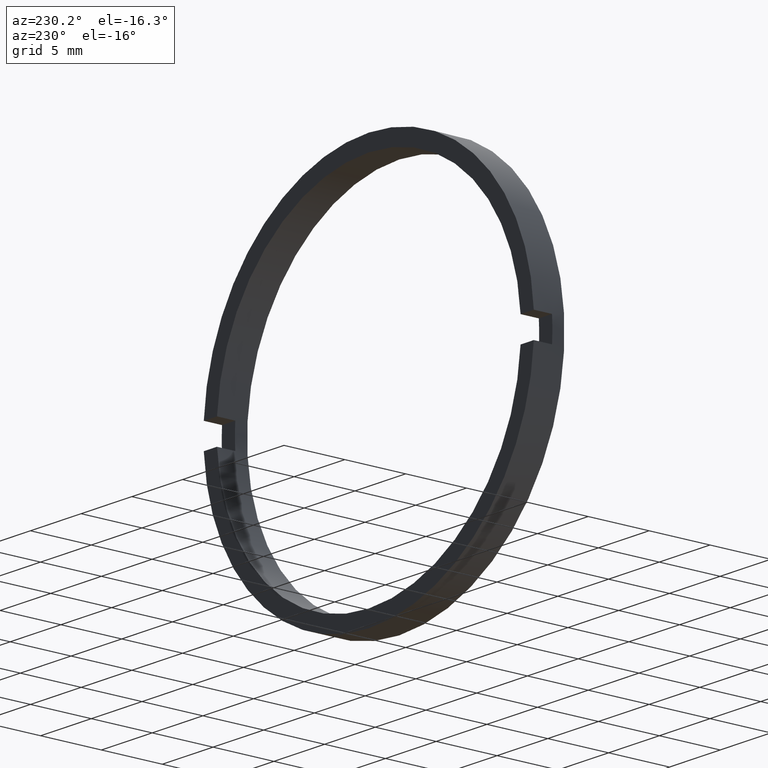
[diagram: clean part render]
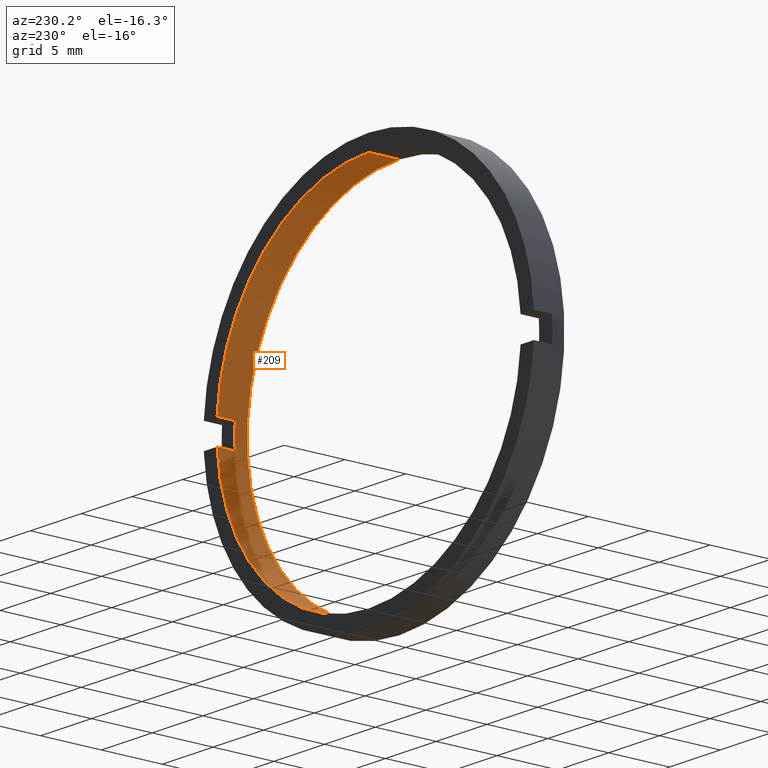
[diagram: same view with one face highlighted and labeled with its STEP entity id]
A machine part, auxiliary view. The second image highlights one B-rep face of the part: STEP entity #209.
In plain terms, the highlighted cylindrical surface (partial cylindrical patch) has radius 15 mm, axis along (-0, 1, -0).
Its self-contained STEP definition (entity closure, byte-faithful):
#2 = AXIS2_PLACEMENT_3D ( 'NONE', #435, #490, #372 ) ;
#3 = CIRCLE ( 'NONE', #36, 15.00000000000000700 ) ;
#5 = DIRECTION ( 'NONE',  ( -0.0000000000000000000, 1.000000000000000000, -0.0000000000000000000 ) ) ;
#10 = CIRCLE ( 'NONE', #217, 15.00000000000000700 ) ;
#16 = ORIENTED_EDGE ( 'NONE', *, *, #77, .T. ) ;
#18 = EDGE_CURVE ( 'NONE', #285, #327, #391, .T. ) ;
#19 = EDGE_CURVE ( 'NONE', #285, #100, #385, .T. ) ;
#36 = AXIS2_PLACEMENT_3D ( 'NONE', #264, #449, #64 ) ;
#39 = VERTEX_POINT ( 'NONE', #352 ) ;
#52 = CARTESIAN_POINT ( 'NONE',  ( 14.96662954709577100, -3.464249787179428400, 0.9999999999999995600 ) ) ;
#56 = CIRCLE ( 'NONE', #420, 15.00000000000000700 ) ;
#59 = VERTEX_POINT ( 'NONE', #52 ) ;
#63 = EDGE_LOOP ( 'NONE', ( #434, #74, #466, #472, #16, #445, #237, #452 ) ) ;
#64 = DIRECTION ( 'NONE',  ( 0.0000000000000000000, 0.0000000000000000000, 1.000000000000000000 ) ) ;
#74 = ORIENTED_EDGE ( 'NONE', *, *, #19, .F. ) ;
#77 = EDGE_CURVE ( 'NONE', #249, #59, #474, .T. ) ;
#100 = VERTEX_POINT ( 'NONE', #430 ) ;
#104 = EDGE_CURVE ( 'NONE', #327, #249, #10, .T. ) ;
#105 = CARTESIAN_POINT ( 'NONE',  ( 0.0000000000000000000, -3.464249787179428400, 0.0000000000000000000 ) ) ;
#116 = DIRECTION ( 'NONE',  ( 0.0000000000000000000, 0.0000000000000000000, 1.000000000000000000 ) ) ;
#127 = EDGE_CURVE ( 'NONE', #39, #395, #179, .T. ) ;
#129 = CARTESIAN_POINT ( 'NONE',  ( 14.96662954709577100, -1.964249787179434000, 0.9999999999999995600 ) ) ;
#134 = CYLINDRICAL_SURFACE ( 'NONE', #2, 15.00000000000000700 ) ;
#139 = CARTESIAN_POINT ( 'NONE',  ( 14.96662954709577100, -1.964249787179434000, -0.9999999999999995600 ) ) ;
#179 = LINE ( 'NONE', #291, #223 ) ;
#209 = ADVANCED_FACE ( 'NONE', ( #371 ), #134, .F. ) ;
#217 = AXIS2_PLACEMENT_3D ( 'NONE', #473, #5, #288 ) ;
#223 = VECTOR ( 'NONE', #290, 1000.000000000000000 ) ;
#237 = ORIENTED_EDGE ( 'NONE', *, *, #127, .T. ) ;
#241 = LINE ( 'NONE', #340, #414 ) ;
#249 = VERTEX_POINT ( 'NONE', #129 ) ;
#251 = VERTEX_POINT ( 'NONE', #444 ) ;
#264 = CARTESIAN_POINT ( 'NONE',  ( 0.0000000000000000000, -1.964249787179434000, 0.0000000000000000000 ) ) ;
#270 = DIRECTION ( 'NONE',  ( -0.0000000000000000000, 1.000000000000000000, -0.0000000000000000000 ) ) ;
#285 = VERTEX_POINT ( 'NONE', #441 ) ;
#287 = VECTOR ( 'NONE', #421, 1000.000000000000000 ) ;
#288 = DIRECTION ( 'NONE',  ( 0.0000000000000000000, 0.0000000000000000000, 1.000000000000000000 ) ) ;
#290 = DIRECTION ( 'NONE',  ( -0.0000000000000000000, 1.000000000000000000, -0.0000000000000000000 ) ) ;
#291 = CARTESIAN_POINT ( 'NONE',  ( 14.96662954709577200, 56.26084262701361600, -1.000000000000000000 ) ) ;
#302 = DIRECTION ( 'NONE',  ( 1.509903313490212900E-014, 0.0000000000000000000, 1.000000000000000000 ) ) ;
#317 = CARTESIAN_POINT ( 'NONE',  ( 0.0000000000000000000, 56.26084262701361600, 15.00000000000000700 ) ) ;
#319 = EDGE_CURVE ( 'NONE', #395, #251, #3, .T. ) ;
#327 = VERTEX_POINT ( 'NONE', #379 ) ;
#331 = EDGE_CURVE ( 'NONE', #39, #59, #56, .T. ) ;
#334 = VECTOR ( 'NONE', #426, 1000.000000000000000 ) ;
#340 = CARTESIAN_POINT ( 'NONE',  ( 1.836970198721030800E-015, 56.26084262701361600, -15.00000000000000700 ) ) ;
#344 = DIRECTION ( 'NONE',  ( -0.0000000000000000000, -1.000000000000000000, -0.0000000000000000000 ) ) ;
#352 = CARTESIAN_POINT ( 'NONE',  ( 14.96662954709577100, -3.464249787179428400, -0.9999999999999995600 ) ) ;
#353 = DIRECTION ( 'NONE',  ( -0.0000000000000000000, 1.000000000000000000, -0.0000000000000000000 ) ) ;
#371 = FACE_OUTER_BOUND ( 'NONE', #63, .T. ) ;
#372 = DIRECTION ( 'NONE',  ( 0.0000000000000000000, 0.0000000000000000000, 1.000000000000000000 ) ) ;
#379 = CARTESIAN_POINT ( 'NONE',  ( 0.0000000000000000000, -1.964249787179434000, 15.00000000000000700 ) ) ;
#385 = CIRCLE ( 'NONE', #471, 15.00000000000000700 ) ;
#391 = LINE ( 'NONE', #317, #287 ) ;
#395 = VERTEX_POINT ( 'NONE', #139 ) ;
#400 = EDGE_CURVE ( 'NONE', #100, #251, #241, .T. ) ;
#414 = VECTOR ( 'NONE', #270, 1000.000000000000000 ) ;
#420 = AXIS2_PLACEMENT_3D ( 'NONE', #105, #344, #302 ) ;
#421 = DIRECTION ( 'NONE',  ( -0.0000000000000000000, 1.000000000000000000, -0.0000000000000000000 ) ) ;
#426 = DIRECTION ( 'NONE',  ( 0.0000000000000000000, -1.000000000000000000, 0.0000000000000000000 ) ) ;
#430 = CARTESIAN_POINT ( 'NONE',  ( 1.836970198721030800E-015, -4.464249787179428900, -15.00000000000000700 ) ) ;
#433 = CARTESIAN_POINT ( 'NONE',  ( 14.96662954709577200, 56.26084262701361600, 1.000000000000000000 ) ) ;
#434 = ORIENTED_EDGE ( 'NONE', *, *, #400, .F. ) ;
#435 = CARTESIAN_POINT ( 'NONE',  ( 0.0000000000000000000, 56.26084262701361600, 0.0000000000000000000 ) ) ;
#441 = CARTESIAN_POINT ( 'NONE',  ( 0.0000000000000000000, -4.464249787179428900, 15.00000000000000700 ) ) ;
#444 = CARTESIAN_POINT ( 'NONE',  ( 1.836970198721030800E-015, -1.964249787179434000, -15.00000000000000700 ) ) ;
#445 = ORIENTED_EDGE ( 'NONE', *, *, #331, .F. ) ;
#449 = DIRECTION ( 'NONE',  ( -0.0000000000000000000, 1.000000000000000000, -0.0000000000000000000 ) ) ;
#452 = ORIENTED_EDGE ( 'NONE', *, *, #319, .T. ) ;
#466 = ORIENTED_EDGE ( 'NONE', *, *, #18, .T. ) ;
#467 = CARTESIAN_POINT ( 'NONE',  ( 0.0000000000000000000, -4.464249787179428900, 0.0000000000000000000 ) ) ;
#471 = AXIS2_PLACEMENT_3D ( 'NONE', #467, #353, #116 ) ;
#472 = ORIENTED_EDGE ( 'NONE', *, *, #104, .T. ) ;
#473 = CARTESIAN_POINT ( 'NONE',  ( 0.0000000000000000000, -1.964249787179434000, 0.0000000000000000000 ) ) ;
#474 = LINE ( 'NONE', #433, #334 ) ;
#490 = DIRECTION ( 'NONE',  ( -0.0000000000000000000, 1.000000000000000000, -0.0000000000000000000 ) ) ;